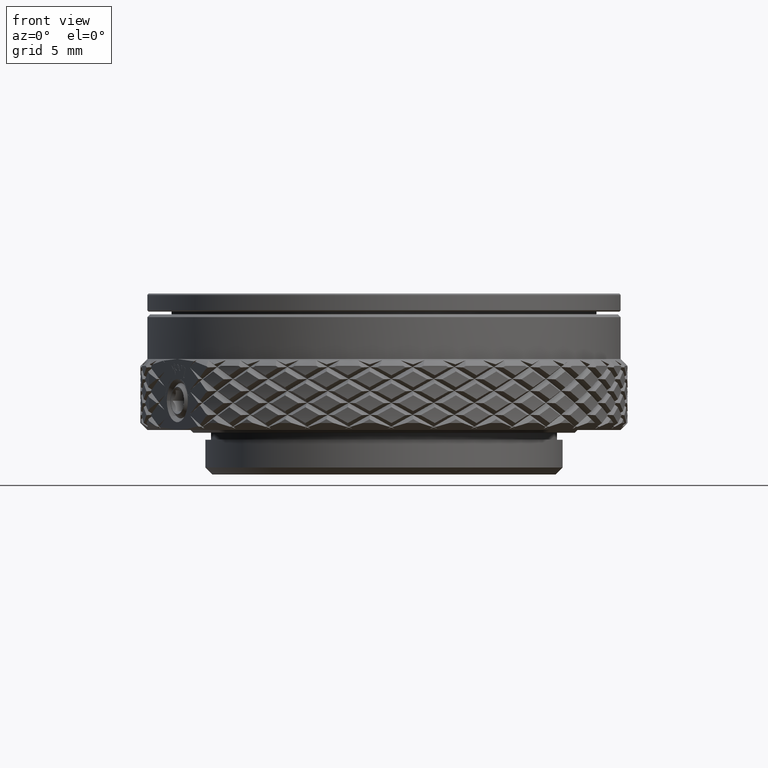
[diagram: clean part render]
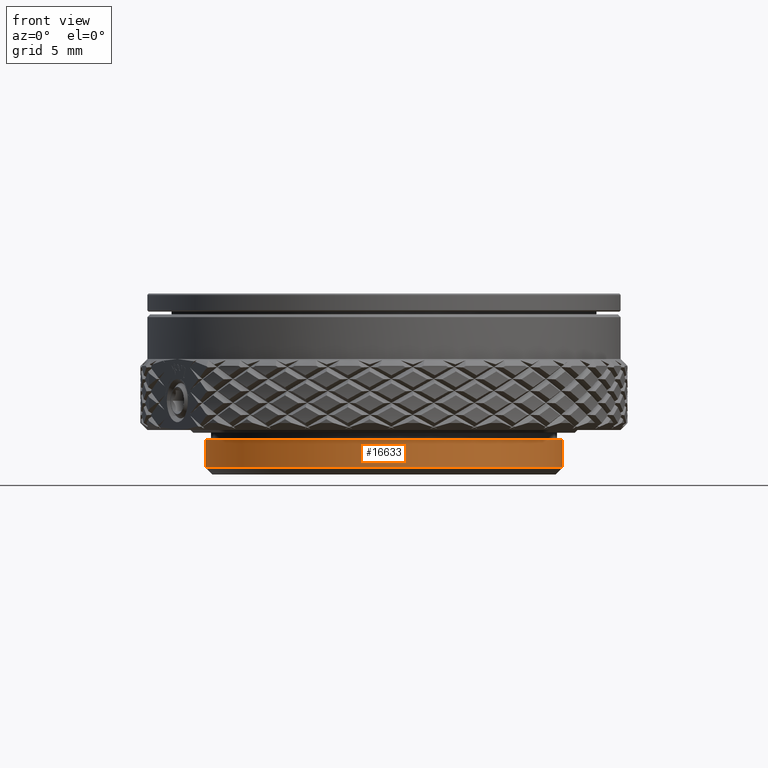
[diagram: same view with one face highlighted and labeled with its STEP entity id]
A machine part, front view. The second image highlights one B-rep face of the part: STEP entity #16633.
In plain terms, the highlighted cylindrical surface (partial cylindrical patch) has radius 12.83 mm, axis along (-0, -0, -1).
Its self-contained STEP definition (entity closure, byte-faithful):
#902 = DIRECTION ( 'NONE',  ( 1.000000000000000000, 0.000000000000000000, 0.000000000000000000 ) ) ;
#1537 = VECTOR ( 'NONE', #73999, 1000.000000000000000 ) ;
#5483 = FACE_OUTER_BOUND ( 'NONE', #26947, .T. ) ;
#13491 = AXIS2_PLACEMENT_3D ( 'NONE', #58204, #52576, #902 ) ;
#16633 = ADVANCED_FACE ( 'NONE', ( #5483 ), #52835, .T. ) ;
#18606 = ORIENTED_EDGE ( 'NONE', *, *, #39926, .F. ) ;
#18937 = AXIS2_PLACEMENT_3D ( 'NONE', #26603, #60633, #46443 ) ;
#20306 = CIRCLE ( 'NONE', #18937, 12.83000000000000007 ) ;
#20569 = LINE ( 'NONE', #46898, #1537 ) ;
#21221 = CARTESIAN_POINT ( 'NONE',  ( -12.83000000000000007, 0.000000000000000000, 0.5000000000000108802 ) ) ;
#23372 = CARTESIAN_POINT ( 'NONE',  ( -12.83000000000000007, 0.000000000000000000, 3.000000000000000000 ) ) ;
#24632 = LINE ( 'NONE', #23372, #73949 ) ;
#26603 = CARTESIAN_POINT ( 'NONE',  ( 0.000000000000000000, 0.000000000000000000, 2.500000000000000000 ) ) ;
#26947 = EDGE_LOOP ( 'NONE', ( #18606, #64675, #85095, #74835 ) ) ;
#31345 = CARTESIAN_POINT ( 'NONE',  ( 0.000000000000000000, 0.000000000000000000, 3.000000000000000000 ) ) ;
#31761 = DIRECTION ( 'NONE',  ( -1.000000000000000000, 0.000000000000000000, 0.000000000000000000 ) ) ;
#34135 = AXIS2_PLACEMENT_3D ( 'NONE', #31345, #58442, #31761 ) ;
#34600 = CARTESIAN_POINT ( 'NONE',  ( 12.83000000000000007, 1.571221843306054112E-15, 2.500000000000000000 ) ) ;
#35538 = CIRCLE ( 'NONE', #13491, 12.83000000000000007 ) ;
#39926 = EDGE_CURVE ( 'NONE', #44680, #78754, #20569, .T. ) ;
#40647 = VERTEX_POINT ( 'NONE', #21221 ) ;
#42609 = EDGE_CURVE ( 'NONE', #46174, #44680, #20306, .T. ) ;
#43457 = EDGE_CURVE ( 'NONE', #40647, #78754, #35538, .T. ) ;
#44680 = VERTEX_POINT ( 'NONE', #34600 ) ;
#46174 = VERTEX_POINT ( 'NONE', #51343 ) ;
#46443 = DIRECTION ( 'NONE',  ( -1.000000000000000000, 0.000000000000000000, 0.000000000000000000 ) ) ;
#46898 = CARTESIAN_POINT ( 'NONE',  ( 12.83000000000000007, 1.571221843306054112E-15, 3.000000000000000000 ) ) ;
#47158 = CARTESIAN_POINT ( 'NONE',  ( 12.83000000000000007, 1.571221843306054112E-15, 0.5000000000000108802 ) ) ;
#51343 = CARTESIAN_POINT ( 'NONE',  ( -12.83000000000000007, 0.000000000000000000, 2.500000000000000000 ) ) ;
#52576 = DIRECTION ( 'NONE',  ( 0.000000000000000000, 0.000000000000000000, 1.000000000000000000 ) ) ;
#52835 = CYLINDRICAL_SURFACE ( 'NONE', #34135, 12.83000000000000007 ) ;
#58204 = CARTESIAN_POINT ( 'NONE',  ( 0.000000000000000000, 0.000000000000000000, 0.5000000000000108802 ) ) ;
#58442 = DIRECTION ( 'NONE',  ( -0.000000000000000000, -0.000000000000000000, -1.000000000000000000 ) ) ;
#60633 = DIRECTION ( 'NONE',  ( -0.000000000000000000, -0.000000000000000000, 1.000000000000000000 ) ) ;
#64675 = ORIENTED_EDGE ( 'NONE', *, *, #42609, .F. ) ;
#69649 = EDGE_CURVE ( 'NONE', #46174, #40647, #24632, .T. ) ;
#73949 = VECTOR ( 'NONE', #83239, 1000.000000000000000 ) ;
#73999 = DIRECTION ( 'NONE',  ( -0.000000000000000000, -0.000000000000000000, -1.000000000000000000 ) ) ;
#74835 = ORIENTED_EDGE ( 'NONE', *, *, #43457, .T. ) ;
#78754 = VERTEX_POINT ( 'NONE', #47158 ) ;
#83239 = DIRECTION ( 'NONE',  ( -0.000000000000000000, -0.000000000000000000, -1.000000000000000000 ) ) ;
#85095 = ORIENTED_EDGE ( 'NONE', *, *, #69649, .T. ) ;